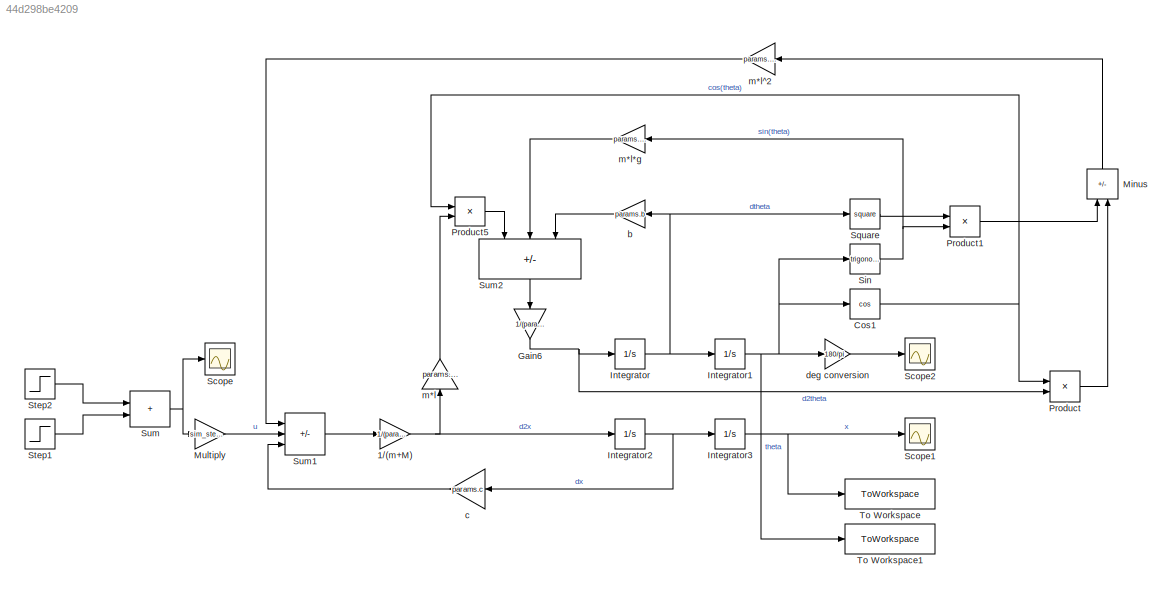
MODEL slx_44d298be4209
KIND model
CONFIG AbsTol = 1e-8
CONFIG EnableMultiTasking = off
CONFIG FixedStep = 0.01
CONFIG MaxStep = auto
CONFIG MinStep = auto
CONFIG RelTol = 1e-6
CONFIG SampleTimeConstraint = Unconstrained
CONFIG SolverName = ode45
CONFIG StartTime = 0.0
CONFIG StopTime = 20
BLOCK [Gain] 1//(m+M)
  Gain = 1/(params.M+params.m)
BLOCK [Trigonometry] Cos1
  Operator = cos
BLOCK [Gain] Gain6
  Gain = 1/(params.m*params.l^2)
  NameLocation = left
BLOCK [Integrator] Integrator
BLOCK [Integrator] Integrator1
  InitialCondition = pi
BLOCK [Integrator] Integrator2
BLOCK [Integrator] Integrator3
BLOCK [Sum] Minus
  IconShape = rectangular
  Inputs = -+
  NameLocation = right
BLOCK [Gain] Multiply
  Gain = sim_step_gain
BLOCK [Product] Product
BLOCK [Product] Product1
BLOCK [Product] Product5
BLOCK [Scope] Scope
  Floating = off
  NumInputPorts = 1
  ScopeSpecificationString = Simulink.scopes.TimeScopeBlockCfg('CurrentConfiguration', extmgr.ConfigurationSet(extmgr.Configuration('Core','General UI',true),extmgr.Configuration('Core','Source UI',true),extmgr.Configuration('Sources','WiredSimulink',true),extmgr.Configuration('Visuals','Time Domain',true,'SerializedDisplays',{struct('MinYLimReal','-0.125','MaxYLimReal','1.125','YLabelReal','','MinYLimMag','0.00000','MaxYLimM...<+1429ch>
BLOCK [Scope] Scope1
  Floating = off
  NumInputPorts = 1
  ScopeSpecificationString = Simulink.scopes.TimeScopeBlockCfg('CurrentConfiguration', extmgr.ConfigurationSet(extmgr.Configuration('Core','General UI',true),extmgr.Configuration('Core','Source UI',true),extmgr.Configuration('Sources','WiredSimulink',true,'DataLoggingVariableName','ScopeData1'),extmgr.Configuration('Visuals','Time Domain',true,'SerializedDisplays',{struct('MinYLimReal','-0.56162','MaxYLimReal','5.05457','YLab...<+1478ch>
BLOCK [Scope] Scope2
  Floating = off
  NumInputPorts = 1
  ScopeSpecificationString = Simulink.scopes.TimeScopeBlockCfg('CurrentConfiguration', extmgr.ConfigurationSet(extmgr.Configuration('Core','General UI',true),extmgr.Configuration('Core','Source UI',true),extmgr.Configuration('Sources','WiredSimulink',true,'DataLoggingVariableName','ScopeData2'),extmgr.Configuration('Visuals','Time Domain',true,'SerializedDisplays',{struct('MinYLimReal','175.42147','MaxYLimReal','184.62081','Y...<+1505ch>
BLOCK [Trigonometry] Sin
BLOCK [Math] Square
  Operator = square
BLOCK [Step] Step1
  SampleTime = 0
BLOCK [Step] Step2
  After = -1
  SampleTime = 0
  Time = 2
BLOCK [Sum] Sum
  IconShape = rectangular
BLOCK [Sum] Sum1
  IconShape = rectangular
  Inputs = -+-
BLOCK [Sum] Sum2
  IconShape = rectangular
  Inputs = -+-
  NameLocation = left
BLOCK [ToWorkspace] To Workspace
  FixptAsFi = on
  MaxDataPoints = inf
  SampleTime = -1
  Save2DSignal = 2-D array (concatenate along first dimension)
  VariableName = x
BLOCK [ToWorkspace] To Workspace1
  FixptAsFi = on
  MaxDataPoints = inf
  SampleTime = -1
  Save2DSignal = 2-D array (concatenate along first dimension)
  VariableName = theta
BLOCK [Gain] b
  Gain = params.b
  NameLocation = top
BLOCK [Gain] c
  Gain = params.c
  NameLocation = top
BLOCK [Gain] deg conversion
  Gain = 180/pi
BLOCK [Gain] m*l
  Gain = params.m*params.l
  NameLocation = right
BLOCK [Gain] m*l*g
  Gain = params.m*params.l*params.g
  NameLocation = top
BLOCK [Gain] m*l^2
  Gain = params.m*params.l^2
  NameLocation = top
NET 1//(m+M):1 -> Integrator2:1, m*l:1
NET Cos1:1 -> Product5:1, Product:1
NET Gain6:1 -> Integrator:1, Product:2
NET Integrator1:1 -> Cos1:1, Sin:1, To Workspace1:1, deg conversion:1
NET Integrator2:1 -> Integrator3:1, c:1
NET Integrator3:1 -> Scope1:1, To Workspace:1
NET Integrator:1 -> Integrator1:1, Square:1, b:1
LINE Minus:1 -> m*l^2:1
LINE Multiply:1 -> Sum1:2
LINE Product1:1 -> Minus:1
LINE Product5:1 -> Sum2:1
LINE Product:1 -> Minus:2
NET Sin:1 -> Product1:2, m*l*g:1
LINE Square:1 -> Product1:1
LINE Step1:1 -> Sum:2
LINE Step2:1 -> Sum:1
LINE Sum1:1 -> 1//(m+M):1
LINE Sum2:1 -> Gain6:1
NET Sum:1 -> Multiply:1, Scope:1
LINE b:1 -> Sum2:3
LINE c:1 -> Sum1:3
LINE deg conversion:1 -> Scope2:1
LINE m*l*g:1 -> Sum2:2
LINE m*l:1 -> Product5:2
LINE m*l^2:1 -> Sum1:1
note: NET lines group one-source signal fan-out (src -> all destinations, sorted); 1:1 wires keep LINE
